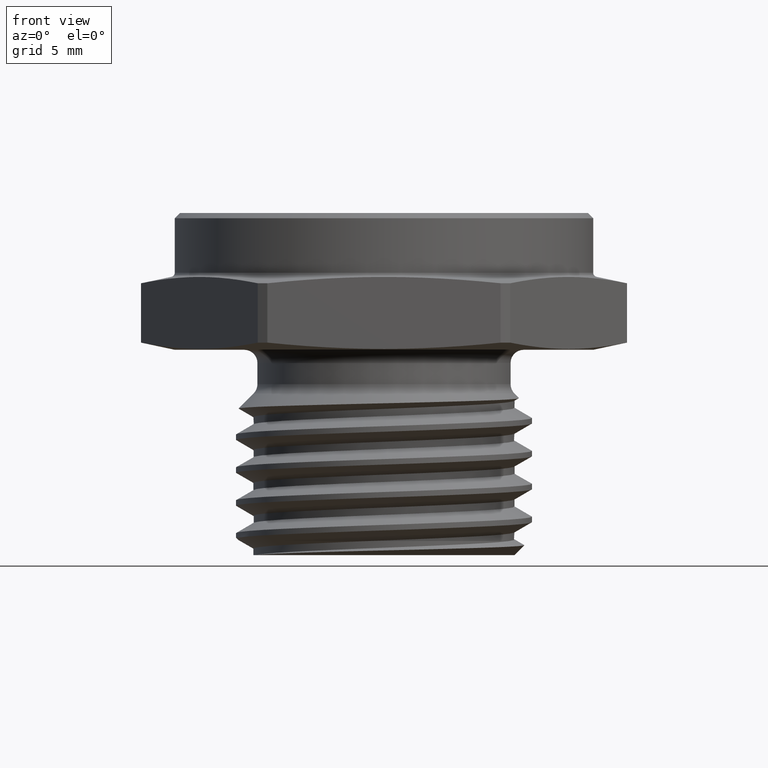
[diagram: clean part render]
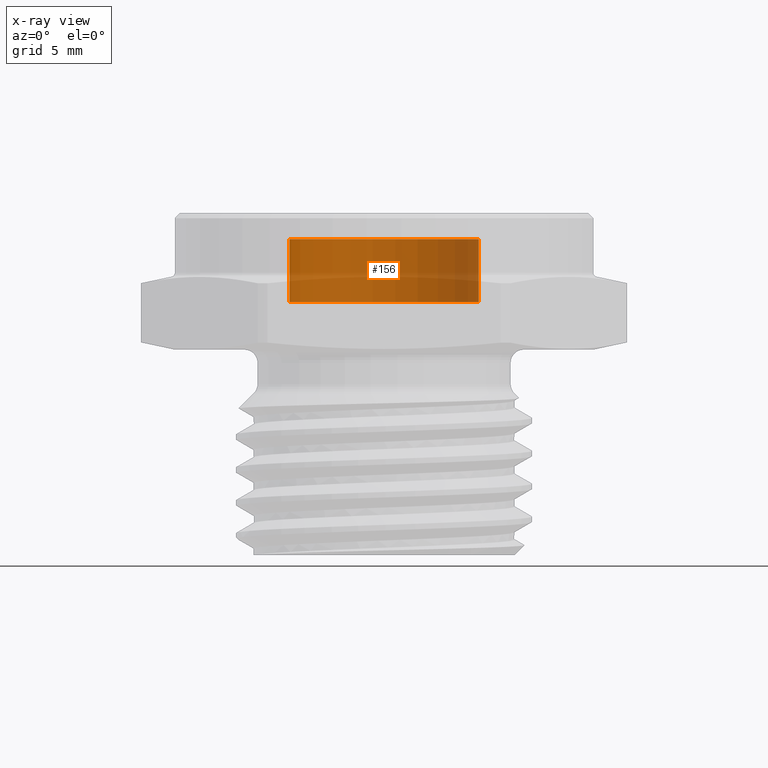
[diagram: x-ray — body ghosted, one internal face saturated and labeled with its STEP entity id]
A machine part, front view, then the same camera in x-ray: the body is ghosted and one INTERNAL B-rep face — a face not visible from any outside direction — is saturated and labeled: STEP entity #156.
In plain terms, the highlighted cylindrical surface (partial cylindrical patch) has radius 4.572 mm, axis along (-0, -0, 1).
Its self-contained STEP definition (entity closure, byte-faithful):
#64 = LINE ( 'NONE', #2176, #65 ) ;
#65 = VECTOR ( 'NONE', #2179, 39.37007874015748100 ) ;
#66 = CIRCLE ( 'NONE', #235, 0.1799999999999999900 ) ;
#67 = CIRCLE ( 'NONE', #236, 0.1799999999999999900 ) ;
#69 = LINE ( 'NONE', #2180, #71 ) ;
#71 = VECTOR ( 'NONE', #2181, 39.37007874015748100 ) ;
#156 = ADVANCED_FACE ( 'NONE', ( #1933 ), #1926, .T. ) ;
#235 = AXIS2_PLACEMENT_3D ( 'NONE', #2182, #2183, #2184 ) ;
#236 = AXIS2_PLACEMENT_3D ( 'NONE', #2185, #2186, #2187 ) ;
#429 = VERTEX_POINT ( 'NONE', #1499 ) ;
#682 = EDGE_CURVE ( 'NONE', #1982, #1980, #64, .T. ) ;
#683 = EDGE_CURVE ( 'NONE', #1982, #429, #66, .T. ) ;
#684 = EDGE_CURVE ( 'NONE', #1980, #1979, #67, .T. ) ;
#685 = EDGE_CURVE ( 'NONE', #429, #1979, #69, .T. ) ;
#769 = AXIS2_PLACEMENT_3D ( 'NONE', #1468, #1469, #1466 ) ;
#925 = CARTESIAN_POINT ( 'NONE',  ( -0.1799999999999999900, 2.204364238465235500E-017, 0.2100000000000000200 ) ) ;
#932 = CARTESIAN_POINT ( 'NONE',  ( 0.1799999999999999900, 0.0000000000000000000, 0.2100000000000000200 ) ) ;
#934 = CARTESIAN_POINT ( 'NONE',  ( -0.1799999999999999900, 2.204364238465235500E-017, 0.09000000000000001100 ) ) ;
#1327 = EDGE_LOOP ( 'NONE', ( #2530, #2579, #2570, #2573 ) ) ;
#1466 = DIRECTION ( 'NONE',  ( 1.000000000000000000, 0.0000000000000000000, 0.0000000000000000000 ) ) ;
#1468 = CARTESIAN_POINT ( 'NONE',  ( 0.0000000000000000000, 0.0000000000000000000, 0.09000000000000001100 ) ) ;
#1469 = DIRECTION ( 'NONE',  ( -0.0000000000000000000, -0.0000000000000000000, 1.000000000000000000 ) ) ;
#1499 = CARTESIAN_POINT ( 'NONE',  ( 0.1799999999999999900, 0.0000000000000000000, 0.09000000000000001100 ) ) ;
#1926 = CYLINDRICAL_SURFACE ( 'NONE', #769, 0.1799999999999999900 ) ;
#1933 = FACE_OUTER_BOUND ( 'NONE', #1327, .T. ) ;
#1979 = VERTEX_POINT ( 'NONE', #932 ) ;
#1980 = VERTEX_POINT ( 'NONE', #925 ) ;
#1982 = VERTEX_POINT ( 'NONE', #934 ) ;
#2176 = CARTESIAN_POINT ( 'NONE',  ( -0.1799999999999999900, 2.204364238465235500E-017, 0.09000000000000001100 ) ) ;
#2179 = DIRECTION ( 'NONE',  ( -0.0000000000000000000, -0.0000000000000000000, 1.000000000000000000 ) ) ;
#2180 = CARTESIAN_POINT ( 'NONE',  ( 0.1799999999999999900, 0.0000000000000000000, 0.09000000000000001100 ) ) ;
#2181 = DIRECTION ( 'NONE',  ( -0.0000000000000000000, -0.0000000000000000000, 1.000000000000000000 ) ) ;
#2182 = CARTESIAN_POINT ( 'NONE',  ( 0.0000000000000000000, 0.0000000000000000000, 0.09000000000000001100 ) ) ;
#2183 = DIRECTION ( 'NONE',  ( 0.0000000000000000000, 0.0000000000000000000, -1.000000000000000000 ) ) ;
#2184 = DIRECTION ( 'NONE',  ( -1.000000000000000000, 0.0000000000000000000, 0.0000000000000000000 ) ) ;
#2185 = CARTESIAN_POINT ( 'NONE',  ( 0.0000000000000000000, 0.0000000000000000000, 0.2100000000000000200 ) ) ;
#2186 = DIRECTION ( 'NONE',  ( 0.0000000000000000000, 0.0000000000000000000, -1.000000000000000000 ) ) ;
#2187 = DIRECTION ( 'NONE',  ( -1.000000000000000000, 0.0000000000000000000, 0.0000000000000000000 ) ) ;
#2530 = ORIENTED_EDGE ( 'NONE', *, *, #683, .F. ) ;
#2570 = ORIENTED_EDGE ( 'NONE', *, *, #684, .T. ) ;
#2573 = ORIENTED_EDGE ( 'NONE', *, *, #685, .F. ) ;
#2579 = ORIENTED_EDGE ( 'NONE', *, *, #682, .T. ) ;